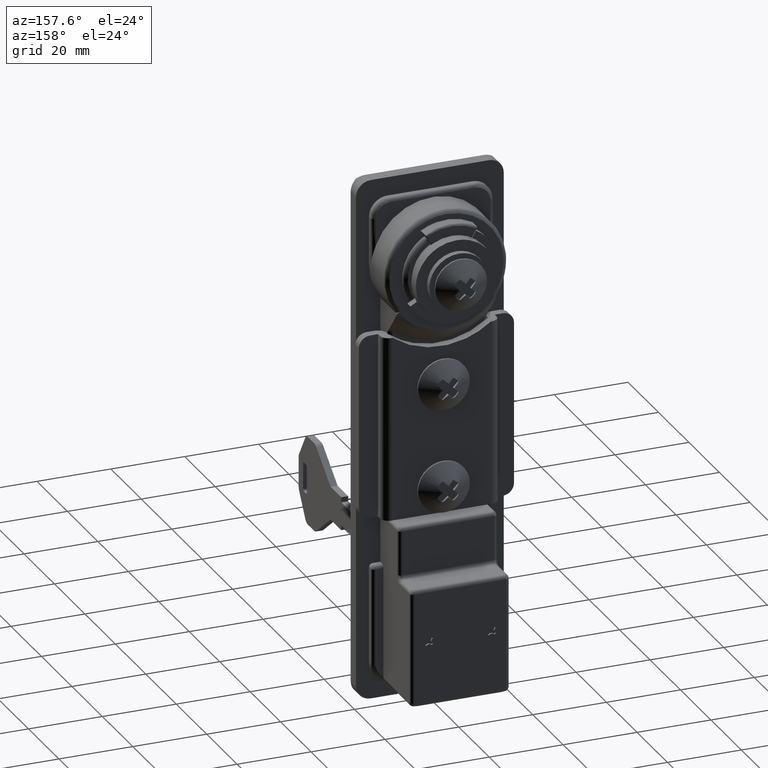
[diagram: clean part render]
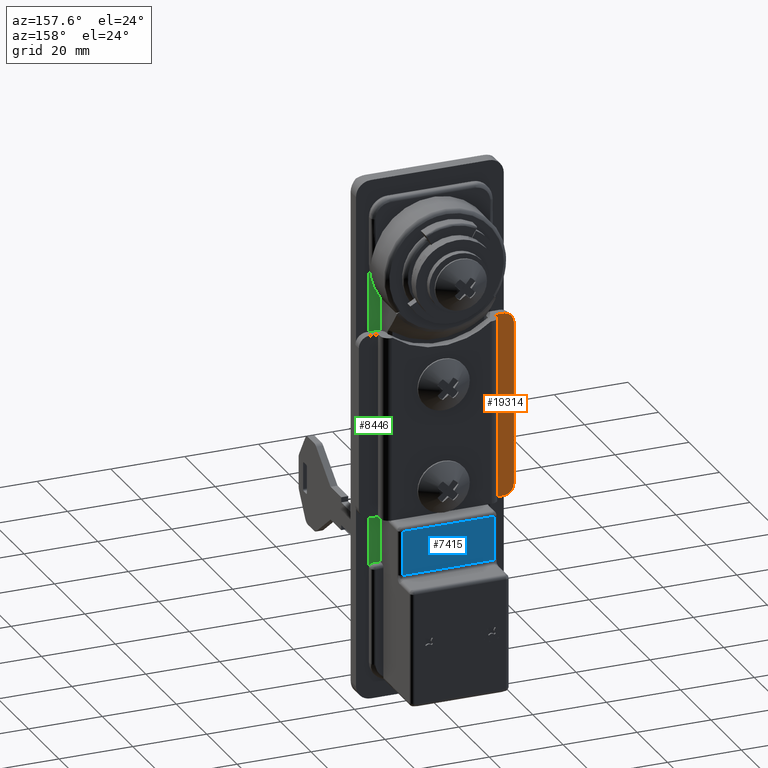
[diagram: same view with three faces highlighted in distinct colors, each labeled with its STEP entity id]
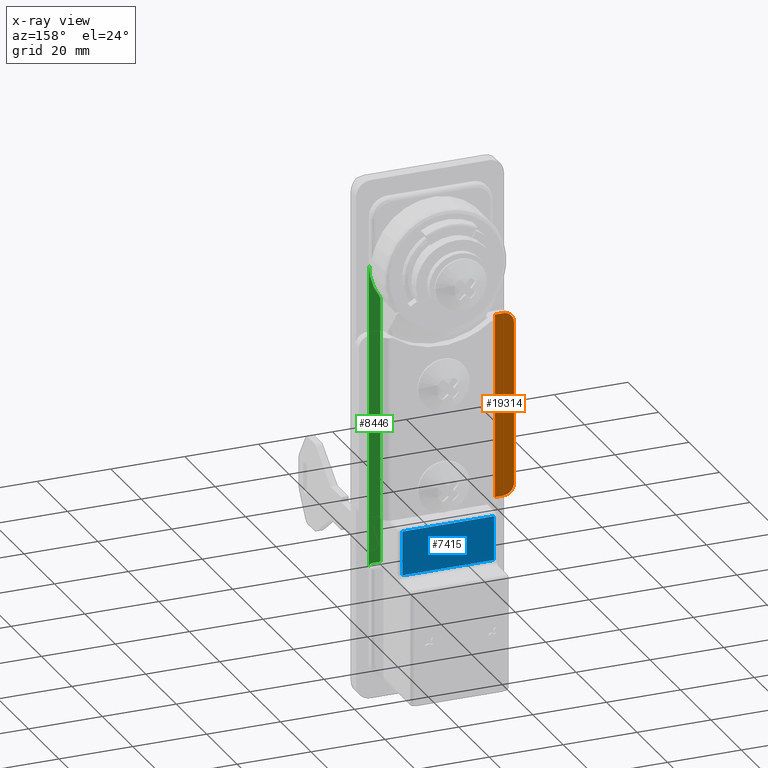
[diagram: x-ray of the same camera — body ghosted, the three highlighted faces saturated]
A machine part, auxiliary view with three faces highlighted in distinct colors.
The next image is the same camera in x-ray (body ghosted, the three faces saturated) — at least one of them is partly hidden behind the body in this view.
Their STEP definitions:

[orange] entity #19314 — the highlighted face is a freeform B-spline surface patch.
#18705=CARTESIAN_POINT('',(5.300000000000130,21.0,-20.500029999999999));
#18706=VERTEX_POINT('',#18705);
#18707=CARTESIAN_POINT('',(5.300000000000130,18.0,-17.500029999999999));
#18708=VERTEX_POINT('',#18707);
#18709=CARTESIAN_POINT('',(5.300000000000130,21.0,-20.500029999999999));
#18710=CARTESIAN_POINT('',(5.300000000000136,21.000700172055609,-20.058092933696312));
#18711=CARTESIAN_POINT('',(5.300000000000129,20.856419542296450,-19.420557032142590));
#18712=CARTESIAN_POINT('',(5.300000000000134,20.412426325934490,-18.680307376927811));
#18713=CARTESIAN_POINT('',(5.300000000000126,19.874859592887589,-18.101010735037431));
#18714=CARTESIAN_POINT('',(5.300000000000138,19.055323635921120,-17.623574876557470));
#18715=CARTESIAN_POINT('',(5.300000000000126,18.343622243940221,-17.499835927691670));
#18716=CARTESIAN_POINT('',(5.300000000000130,18.0,-17.500029999999999));
#18717=B_SPLINE_CURVE_WITH_KNOTS('',3,(#18709,#18710,#18711,#18712,#18713,#18714,#18715,#18716),.UNSPECIFIED.,.F.,.U.,(4,1,1,1,1,4),(0.000000430708347,1.325395774103839,1.914506300317075,2.577109602224704,3.681649175272152,4.712507233044782),.UNSPECIFIED.);
#18718=EDGE_CURVE('',#18706,#18708,#18717,.T.);
#18762=CARTESIAN_POINT('',(5.300000000000130,18.0,-67.500030000000010));
#18763=VERTEX_POINT('',#18762);
#18764=CARTESIAN_POINT('',(5.300000000000130,21.0,-64.500029999999995));
#18765=VERTEX_POINT('',#18764);
#18766=CARTESIAN_POINT('',(5.300000000000130,18.0,-67.500030000000010));
#18767=CARTESIAN_POINT('',(5.300000000000134,18.319077814982350,-67.500203124018242));
#18768=CARTESIAN_POINT('',(5.300000000000124,18.957154561804970,-67.397289590269125));
#18769=CARTESIAN_POINT('',(5.300000000000146,19.729393340654578,-66.996690668044522));
#18770=CARTESIAN_POINT('',(5.300000000000105,20.272070757980099,-66.492336494399439));
#18771=CARTESIAN_POINT('',(5.300000000000177,20.655509434473402,-65.947954797161714));
#18772=CARTESIAN_POINT('',(5.300000000000061,20.929971125014479,-65.285396119260653));
#18773=CARTESIAN_POINT('',(5.300000000000185,21.000075455972681,-64.770014193938735));
#18774=CARTESIAN_POINT('',(5.300000000000130,21.0,-64.500029999999995));
#18775=B_SPLINE_CURVE_WITH_KNOTS('',3,(#18766,#18767,#18768,#18769,#18770,#18771,#18772,#18773,#18774),.UNSPECIFIED.,.F.,.U.,(4,1,1,1,1,1,4),(0.000000430710050,0.957213352500348,1.914506300319586,2.577109602227308,3.166209684669470,3.902551380254973,4.712507233044766),.UNSPECIFIED.);
#18776=EDGE_CURVE('',#18763,#18765,#18775,.T.);
#19133=CARTESIAN_POINT('',(5.300000000000130,15.800000000000001,-67.500030000000010));
#19134=VERTEX_POINT('',#19133);
#19135=CARTESIAN_POINT('',(5.300000000000130,15.800000000000001,-67.500030000000010));
#19136=CARTESIAN_POINT('',(5.300000000000130,18.0,-67.500030000000010));
#19137=QUASI_UNIFORM_CURVE('',1,(#19135,#19136),.UNSPECIFIED.,.F.,.U.);
#19138=EDGE_CURVE('',#19134,#18763,#19137,.T.);
#19280=CARTESIAN_POINT('',(5.300000000000130,21.0,-64.500029999999995));
#19281=CARTESIAN_POINT('',(5.300000000000130,21.0,-20.500029999999999));
#19282=QUASI_UNIFORM_CURVE('',1,(#19280,#19281),.UNSPECIFIED.,.F.,.U.);
#19283=EDGE_CURVE('',#18765,#18706,#19282,.T.);
#19291=CARTESIAN_POINT('',(5.300000000000130,15.540260205334130,-15.002530566273929));
#19292=CARTESIAN_POINT('',(5.300000000000130,15.540260205334130,-69.997531221865415));
#19293=CARTESIAN_POINT('',(5.300000000000130,21.259740120107239,-15.002530566273929));
#19294=CARTESIAN_POINT('',(5.300000000000130,21.259740120107239,-69.997531221865415));
#19295=B_SPLINE_SURFACE_WITH_KNOTS('',1,1,((#19291,#19293),(#19292,#19294)),.UNSPECIFIED.,.F.,.F.,.U.,(2,2),(2,2),(0.0,54.995000655591483),(0.0,5.719479914773107),.UNSPECIFIED.);
#19296=ORIENTED_EDGE('',*,*,#19138,.T.);
#19297=ORIENTED_EDGE('',*,*,#18776,.T.);
#19298=ORIENTED_EDGE('',*,*,#19283,.T.);
#19299=ORIENTED_EDGE('',*,*,#18718,.T.);
#19300=CARTESIAN_POINT('',(5.300000000000130,15.800000000000001,-17.500029999999999));
#19301=VERTEX_POINT('',#19300);
#19302=CARTESIAN_POINT('',(5.300000000000130,15.800000000000001,-17.500029999999999));
#19303=CARTESIAN_POINT('',(5.300000000000130,18.0,-17.500029999999999));
#19304=QUASI_UNIFORM_CURVE('',1,(#19302,#19303),.UNSPECIFIED.,.F.,.U.);
#19305=EDGE_CURVE('',#19301,#18708,#19304,.T.);
#19306=ORIENTED_EDGE('',*,*,#19305,.F.);
#19307=CARTESIAN_POINT('',(5.300000000000130,15.800000000000001,-67.500030000000010));
#19308=CARTESIAN_POINT('',(5.300000000000130,15.800000000000001,-17.500029999999999));
#19309=QUASI_UNIFORM_CURVE('',1,(#19307,#19308),.UNSPECIFIED.,.F.,.U.);
#19310=EDGE_CURVE('',#19134,#19301,#19309,.T.);
#19311=ORIENTED_EDGE('',*,*,#19310,.F.);
#19312=EDGE_LOOP('',(#19296,#19297,#19298,#19299,#19306,#19311));
#19313=FACE_OUTER_BOUND('',#19312,.T.);
#19314=ADVANCED_FACE('',(#19313),#19295,.T.);

[blue] entity #7415 — the highlighted face is a freeform B-spline surface patch.
#4363=CARTESIAN_POINT('',(13.0,12.400000000000199,-69.000030000000010));
#4364=VERTEX_POINT('',#4363);
#4510=CARTESIAN_POINT('',(13.0,-12.400000000000141,-69.000030000000010));
#4511=VERTEX_POINT('',#4510);
#4522=CARTESIAN_POINT('',(13.0,12.400000000000199,-69.000030000000010));
#4523=CARTESIAN_POINT('',(13.0,-12.400000000000141,-69.000030000000010));
#4524=QUASI_UNIFORM_CURVE('',1,(#4522,#4523),.UNSPECIFIED.,.F.,.U.);
#4525=EDGE_CURVE('',#4364,#4511,#4524,.T.);
#4550=CARTESIAN_POINT('',(13.0,12.400000000000199,-81.000029999999995));
#4551=VERTEX_POINT('',#4550);
#4570=CARTESIAN_POINT('',(13.0,12.400000000000199,-81.000029999999995));
#4571=CARTESIAN_POINT('',(13.0,12.400000000000199,-69.000030000000010));
#4572=QUASI_UNIFORM_CURVE('',1,(#4570,#4571),.UNSPECIFIED.,.F.,.U.);
#4573=EDGE_CURVE('',#4551,#4364,#4572,.T.);
#4689=CARTESIAN_POINT('',(13.0,-12.400000000000141,-81.000029999999995));
#4690=VERTEX_POINT('',#4689);
#4701=CARTESIAN_POINT('',(13.0,-12.400000000000141,-69.000030000000010));
#4702=CARTESIAN_POINT('',(13.0,-12.400000000000141,-81.000029999999995));
#4703=QUASI_UNIFORM_CURVE('',1,(#4701,#4702),.UNSPECIFIED.,.F.,.U.);
#4704=EDGE_CURVE('',#4511,#4690,#4703,.T.);
#4747=CARTESIAN_POINT('',(13.0,-12.400000000000141,-81.000029999999995));
#4748=CARTESIAN_POINT('',(13.0,12.400000000000199,-81.000029999999995));
#4749=QUASI_UNIFORM_CURVE('',1,(#4747,#4748),.UNSPECIFIED.,.F.,.U.);
#4750=EDGE_CURVE('',#4690,#4551,#4749,.T.);
#7404=CARTESIAN_POINT('',(13.0,-13.638759630525270,-68.400630473847983));
#7405=CARTESIAN_POINT('',(13.0,-13.638759630525270,-81.599430277170555));
#7406=CARTESIAN_POINT('',(13.0,13.638758743608211,-68.400630473847983));
#7407=CARTESIAN_POINT('',(13.0,13.638758743608211,-81.599430277170555));
#7408=B_SPLINE_SURFACE_WITH_KNOTS('',1,1,((#7404,#7406),(#7405,#7407)),.UNSPECIFIED.,.F.,.F.,.U.,(2,2),(2,2),(0.0,13.198799803322570),(0.0,27.277518374133489),.UNSPECIFIED.);
#7409=ORIENTED_EDGE('',*,*,#4573,.T.);
#7410=ORIENTED_EDGE('',*,*,#4525,.T.);
#7411=ORIENTED_EDGE('',*,*,#4704,.T.);
#7412=ORIENTED_EDGE('',*,*,#4750,.T.);
#7413=EDGE_LOOP('',(#7409,#7410,#7411,#7412));
#7414=FACE_OUTER_BOUND('',#7413,.T.);
#7415=ADVANCED_FACE('',(#7414),#7408,.T.);

[green] entity #8446 — the highlighted face is a freeform B-spline surface patch.
#5944=CARTESIAN_POINT('',(1.000000000000084,-16.499980000000001,-83.000030000000010));
#5945=VERTEX_POINT('',#5944);
#5946=CARTESIAN_POINT('',(1.000000000000084,-15.499980000000001,-82.000029999999995));
#5947=VERTEX_POINT('',#5946);
#5948=CARTESIAN_POINT('',(1.000000000000084,-16.499980000000001,-83.000030000000010));
#5949=CARTESIAN_POINT('',(1.000000000000084,-16.500033930294482,-82.885490055292891));
#5950=CARTESIAN_POINT('',(1.000000000000085,-16.457404222273219,-82.640066136178419));
#5951=CARTESIAN_POINT('',(1.000000000000084,-16.260296137282271,-82.310928000254592));
#5952=CARTESIAN_POINT('',(1.000000000000083,-15.925205447490111,-82.062624919096834));
#5953=CARTESIAN_POINT('',(1.000000000000085,-15.647290271258351,-81.999801811614901));
#5954=CARTESIAN_POINT('',(1.000000000000084,-15.499980000000001,-82.000029999999995));
#5955=B_SPLINE_CURVE_WITH_KNOTS('',3,(#5948,#5949,#5950,#5951,#5952,#5953,#5954),.UNSPECIFIED.,.F.,.U.,(4,1,1,1,4),(0.000000516448293,0.343647204979441,0.736408411951250,1.129119788274055,1.570953883368439),.UNSPECIFIED.);
#5956=EDGE_CURVE('',#5945,#5947,#5955,.T.);
#7618=CARTESIAN_POINT('',(1.000000000000084,-13.400000000000000,-9.627513178432919));
#7619=VERTEX_POINT('',#7618);
#7625=CARTESIAN_POINT('',(1.000000000000084,-13.400000000000000,-82.000029999999995));
#7626=VERTEX_POINT('',#7625);
#7627=CARTESIAN_POINT('',(1.000000000000084,-13.400000000000000,-9.627513178432919));
#7628=CARTESIAN_POINT('',(1.000000000000084,-13.400000000000000,-82.000029999999995));
#7629=QUASI_UNIFORM_CURVE('',1,(#7627,#7628),.UNSPECIFIED.,.F.,.U.);
#7630=EDGE_CURVE('',#7619,#7626,#7629,.T.);
#7842=CARTESIAN_POINT('',(1.000000000000084,-16.499980000000001,0.0));
#7843=VERTEX_POINT('',#7842);
#7849=CARTESIAN_POINT('',(1.000000000000084,-13.400000000000000,-9.627513178432919));
#7850=CARTESIAN_POINT('',(1.000000000000081,-14.181288034363529,-8.540638706275876));
#7851=CARTESIAN_POINT('',(1.000000000000089,-15.165840105010821,-6.743033725689811));
#7852=CARTESIAN_POINT('',(1.000000000000080,-16.234038373156281,-3.479924372051266));
#7853=CARTESIAN_POINT('',(1.000000000000086,-16.500393856452352,-1.392108417345621));
#7854=CARTESIAN_POINT('',(1.000000000000084,-16.499980000000001,0.0));
#7855=B_SPLINE_CURVE_WITH_KNOTS('',3,(#7849,#7850,#7851,#7852,#7853,#7854),.UNSPECIFIED.,.F.,.U.,(4,1,1,4),(0.000000028170396,4.015545362833107,6.103610112469736,10.279779491990009),.UNSPECIFIED.);
#7856=EDGE_CURVE('',#7619,#7843,#7855,.T.);
#8178=CARTESIAN_POINT('',(1.000000000000084,-16.499980000000001,-83.000030000000010));
#8179=CARTESIAN_POINT('',(1.000000000000084,-16.499980000000001,0.0));
#8180=QUASI_UNIFORM_CURVE('',1,(#8178,#8179),.UNSPECIFIED.,.F.,.U.);
#8181=EDGE_CURVE('',#5945,#7843,#8180,.T.);
#8218=CARTESIAN_POINT('',(1.000000000000084,-13.400000000000000,-82.000029999999995));
#8219=CARTESIAN_POINT('',(1.000000000000084,-15.499980000000001,-82.000029999999995));
#8220=QUASI_UNIFORM_CURVE('',1,(#8218,#8219),.UNSPECIFIED.,.F.,.U.);
#8221=EDGE_CURVE('',#7626,#5947,#8220,.T.);
#8434=CARTESIAN_POINT('',(1.000000000000084,-16.654824995480350,4.145851337629834));
#8435=CARTESIAN_POINT('',(1.000000000000084,-16.654824995480350,-87.145883563864132));
#8436=CARTESIAN_POINT('',(1.000000000000084,-13.245155641987211,4.145851337629834));
#8437=CARTESIAN_POINT('',(1.000000000000084,-13.245155641987211,-87.145883563864132));
#8438=B_SPLINE_SURFACE_WITH_KNOTS('',1,1,((#8434,#8436),(#8435,#8437)),.UNSPECIFIED.,.F.,.F.,.U.,(2,2),(2,2),(0.0,91.291734901493967),(0.0,3.409669353493133),.UNSPECIFIED.);
#8439=ORIENTED_EDGE('',*,*,#7630,.F.);
#8440=ORIENTED_EDGE('',*,*,#7856,.T.);
#8441=ORIENTED_EDGE('',*,*,#8181,.F.);
#8442=ORIENTED_EDGE('',*,*,#5956,.T.);
#8443=ORIENTED_EDGE('',*,*,#8221,.F.);
#8444=EDGE_LOOP('',(#8439,#8440,#8441,#8442,#8443));
#8445=FACE_OUTER_BOUND('',#8444,.T.);
#8446=ADVANCED_FACE('',(#8445),#8438,.T.);